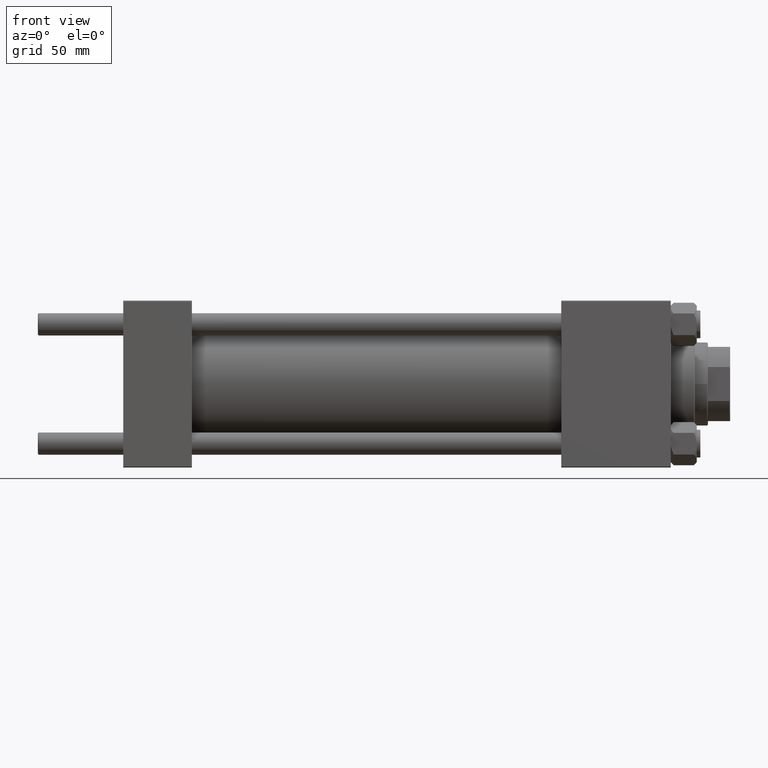
[diagram: clean part render]
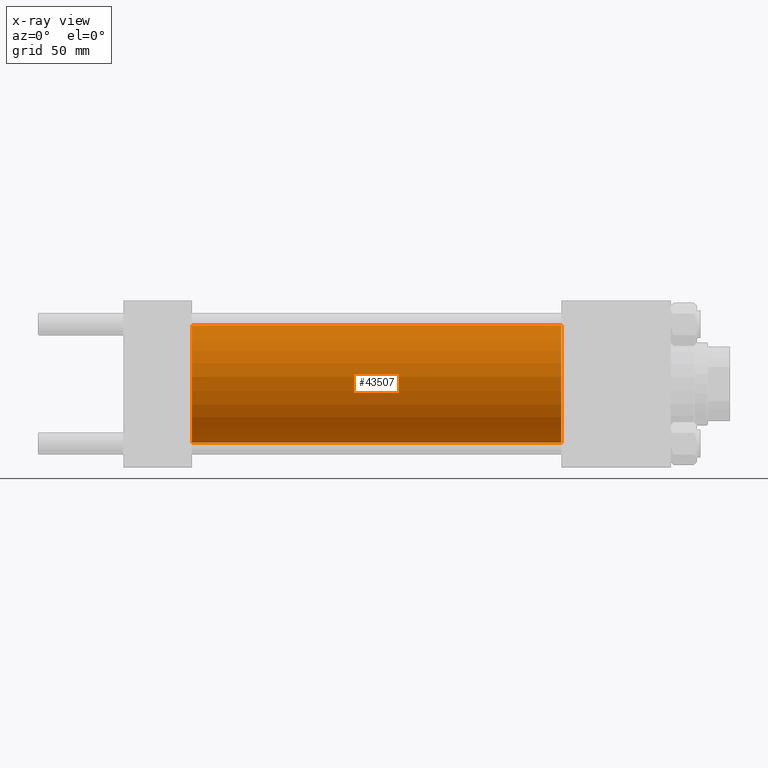
[diagram: x-ray — body ghosted, one internal face saturated and labeled with its STEP entity id]
A machine part, front view, then the same camera in x-ray: the body is ghosted and one INTERNAL B-rep face — a face not visible from any outside direction — is saturated and labeled: STEP entity #43507.
In plain terms, the highlighted cylindrical surface (partial cylindrical patch) has radius 31.5 mm, axis along (-1, -0, -0).
Its self-contained STEP definition (entity closure, byte-faithful):
#321 = ORIENTED_EDGE ( 'NONE', *, *, #19453, .F. ) ;
#549 = CYLINDRICAL_SURFACE ( 'NONE', #30182, 31.50000000000000000 ) ;
#1433 = EDGE_LOOP ( 'NONE', ( #6642, #16850, #321, #39254 ) ) ;
#2270 = CIRCLE ( 'NONE', #30394, 31.50000000000000000 ) ;
#6642 = ORIENTED_EDGE ( 'NONE', *, *, #26438, .T. ) ;
#7132 = DIRECTION ( 'NONE',  ( -1.000000000000000000, -0.000000000000000000, -0.000000000000000000 ) ) ;
#7140 = DIRECTION ( 'NONE',  ( -1.000000000000000000, -0.000000000000000000, -0.000000000000000000 ) ) ;
#7415 = DIRECTION ( 'NONE',  ( 1.000000000000000000, 0.000000000000000000, 0.000000000000000000 ) ) ;
#7911 = DIRECTION ( 'NONE',  ( 0.000000000000000000, 0.000000000000000000, -1.000000000000000000 ) ) ;
#9308 = CARTESIAN_POINT ( 'NONE',  ( 236.0000000000000284, 0.000000000000000000, 31.50000000000000000 ) ) ;
#12171 = CARTESIAN_POINT ( 'NONE',  ( 37.00000000000000000, 0.000000000000000000, 0.000000000000000000 ) ) ;
#14667 = CARTESIAN_POINT ( 'NONE',  ( 236.0000000000000284, 3.857637417314162689E-15, -31.50000000000000000 ) ) ;
#16834 = LINE ( 'NONE', #9308, #31389 ) ;
#16850 = ORIENTED_EDGE ( 'NONE', *, *, #44442, .T. ) ;
#19409 = CARTESIAN_POINT ( 'NONE',  ( 236.0000000000000284, 0.000000000000000000, 0.000000000000000000 ) ) ;
#19453 = EDGE_CURVE ( 'NONE', #35722, #19968, #40581, .T. ) ;
#19968 = VERTEX_POINT ( 'NONE', #44389 ) ;
#22490 = CARTESIAN_POINT ( 'NONE',  ( 236.0000000000000284, 3.857637417314162689E-15, -31.50000000000000000 ) ) ;
#26438 = EDGE_CURVE ( 'NONE', #33741, #48057, #2270, .T. ) ;
#26707 = DIRECTION ( 'NONE',  ( 0.000000000000000000, 0.000000000000000000, -1.000000000000000000 ) ) ;
#28529 = EDGE_CURVE ( 'NONE', #33741, #35722, #16834, .T. ) ;
#28594 = AXIS2_PLACEMENT_3D ( 'NONE', #12171, #7415, #7911 ) ;
#28677 = DIRECTION ( 'NONE',  ( -1.000000000000000000, -0.000000000000000000, -0.000000000000000000 ) ) ;
#30182 = AXIS2_PLACEMENT_3D ( 'NONE', #19409, #7132, #38507 ) ;
#30394 = AXIS2_PLACEMENT_3D ( 'NONE', #46501, #30475, #26707 ) ;
#30475 = DIRECTION ( 'NONE',  ( 1.000000000000000000, 0.000000000000000000, 0.000000000000000000 ) ) ;
#30945 = VECTOR ( 'NONE', #7140, 1000.000000000000000 ) ;
#30991 = FACE_OUTER_BOUND ( 'NONE', #1433, .T. ) ;
#31389 = VECTOR ( 'NONE', #28677, 1000.000000000000000 ) ;
#33300 = LINE ( 'NONE', #22490, #30945 ) ;
#33741 = VERTEX_POINT ( 'NONE', #47136 ) ;
#33749 = CARTESIAN_POINT ( 'NONE',  ( 37.00000000000000000, 0.000000000000000000, 31.50000000000000000 ) ) ;
#35722 = VERTEX_POINT ( 'NONE', #33749 ) ;
#38507 = DIRECTION ( 'NONE',  ( 0.000000000000000000, 0.000000000000000000, 1.000000000000000000 ) ) ;
#39254 = ORIENTED_EDGE ( 'NONE', *, *, #28529, .F. ) ;
#40581 = CIRCLE ( 'NONE', #28594, 31.50000000000000000 ) ;
#43507 = ADVANCED_FACE ( 'NONE', ( #30991 ), #549, .F. ) ;
#44389 = CARTESIAN_POINT ( 'NONE',  ( 37.00000000000000000, 3.857637417314162689E-15, -31.50000000000000000 ) ) ;
#44442 = EDGE_CURVE ( 'NONE', #48057, #19968, #33300, .T. ) ;
#46501 = CARTESIAN_POINT ( 'NONE',  ( 236.0000000000000284, 0.000000000000000000, 0.000000000000000000 ) ) ;
#47136 = CARTESIAN_POINT ( 'NONE',  ( 236.0000000000000284, 0.000000000000000000, 31.50000000000000000 ) ) ;
#48057 = VERTEX_POINT ( 'NONE', #14667 ) ;